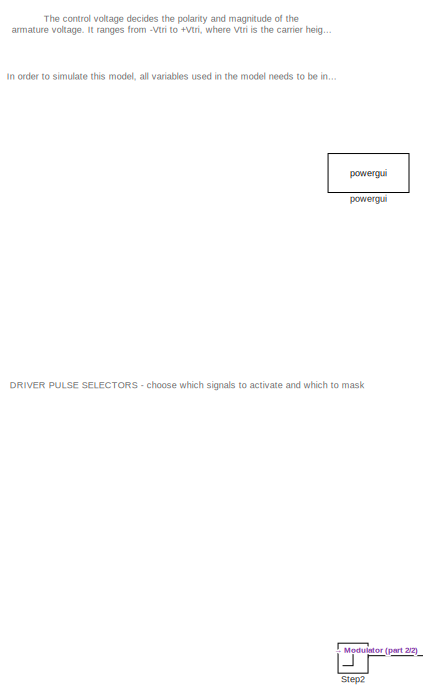
[diagram: root canvas - part 1/2, left side, full height]
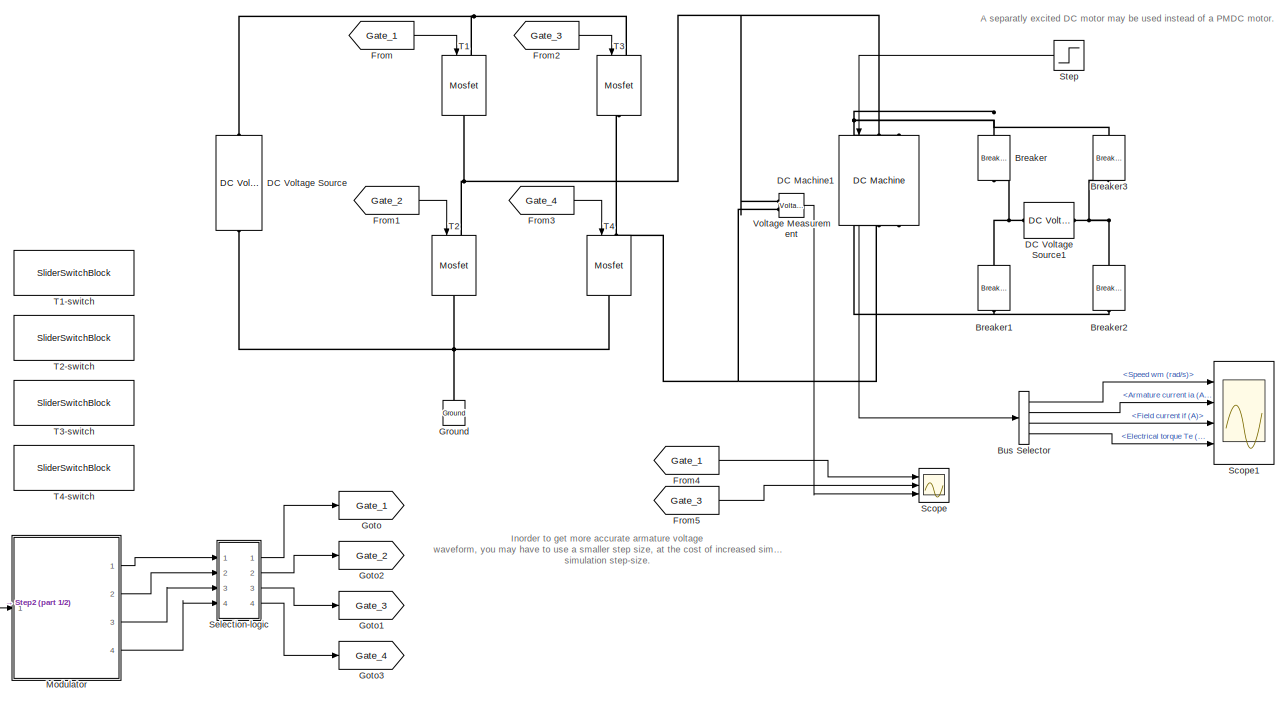
[diagram: root canvas - part 2/2, most of the canvas]
MODEL slx_776ec3e43fee
KIND model
CONFIG AbsTol = auto
CONFIG EnableMultiTasking = on
CONFIG FixedStep = 1e-5
CONFIG MaxStep = 1e-6
CONFIG MinStep = auto
CONFIG RelTol = 1e-3
CONFIG SampleTimeConstraint = Unconstrained
CONFIG SolverName = VariableStepAuto
CONFIG StartTime = 0.0
CONFIG StopTime = 1
BLOCK [Reference] Breaker  REF=spsBreakerLib/Breaker
  NameLocation = left
  Ports = [0, 0, 0, 0, 0, 1, 1]
  SourceBlock = spsBreakerLib/Breaker
  SourceProductBaseCode = PS
  SourceType = Breaker
BLOCK [Reference] Breaker1  REF=spsBreakerLib/Breaker
  NameLocation = left
  Ports = [0, 0, 0, 0, 0, 1, 1]
  SourceBlock = spsBreakerLib/Breaker
  SourceProductBaseCode = PS
  SourceType = Breaker
BLOCK [Reference] Breaker2  REF=spsBreakerLib/Breaker
  NameLocation = left
  Ports = [0, 0, 0, 0, 0, 1, 1]
  SourceBlock = spsBreakerLib/Breaker
  SourceProductBaseCode = PS
  SourceType = Breaker
BLOCK [Reference] Breaker3  REF=spsBreakerLib/Breaker
  NameLocation = left
  Ports = [0, 0, 0, 0, 0, 1, 1]
  SourceBlock = spsBreakerLib/Breaker
  SourceProductBaseCode = PS
  SourceType = Breaker
BLOCK [BusSelector] Bus Selector
  OutputSignals = Speed wm (rad/s),Armature current ia (A),Field current if (A),Electrical torque Te (n m)
  Ports = [1, 4]
BLOCK [Reference] DC Machine1  REF=spsDCMachineLib/DC Machine
  NameLocation = left
  Ports = [1, 1, 0, 0, 0, 2, 2]
  SourceBlock = spsDCMachineLib/DC Machine
  SourceProductBaseCode = PS
  SourceType = DC machine
BLOCK [Reference] DC Voltage Source  REF=spsDCVoltageSourceLib/DC Voltage Source
  NameLocation = right
  Ports = [0, 0, 0, 0, 0, 1, 1]
  SourceBlock = spsDCVoltageSourceLib/DC Voltage Source
  SourceProductBaseCode = PS
  SourceType = DC Voltage Source
BLOCK [Reference] DC Voltage Source1  REF=spsDCVoltageSourceLib/DC Voltage Source
  NameLocation = left
  Ports = [0, 0, 0, 0, 0, 1, 1]
  SourceBlock = spsDCVoltageSourceLib/DC Voltage Source
  SourceProductBaseCode = PS
  SourceType = DC Voltage Source
BLOCK [From] From
  GotoTag = Gate_1
BLOCK [From] From1
  GotoTag = Gate_2
BLOCK [From] From2
  GotoTag = Gate_3
BLOCK [From] From3
  GotoTag = Gate_4
BLOCK [From] From4
  GotoTag = Gate_1
BLOCK [From] From5
  GotoTag = Gate_3
BLOCK [Goto] Goto
  GotoTag = Gate_1
BLOCK [Goto] Goto1
  GotoTag = Gate_3
BLOCK [Goto] Goto2
  GotoTag = Gate_2
BLOCK [Goto] Goto3
  GotoTag = Gate_4
BLOCK [Reference] Ground  REF=spsGroundLib/Ground
  NameLocation = right
  Ports = [0, 0, 0, 0, 0, 1]
  SourceBlock = spsGroundLib/Ground
  SourceProductBaseCode = PS
  SourceType = Ground
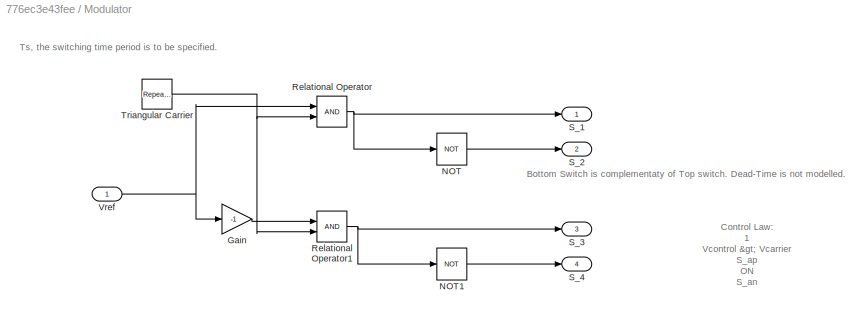
BLOCK [SubSystem] Modulator
  Ports = [1, 4]
  RequestExecContextInheritance = off
BLOCK [Gain] Modulator/Gain
  Gain = -1
  OutDataTypeStr = Inherit: Same as input
  ParamDataTypeStr = Inherit: Same as input
  SaturateOnIntegerOverflow = on
BLOCK [Logic] Modulator/NOT
  AllPortsSameDT = off
  IconShape = distinctive
  Operator = NOT
  OutDataTypeStr = boolean
  Ports = [1, 1]
BLOCK [Logic] Modulator/NOT1
  AllPortsSameDT = off
  IconShape = distinctive
  Operator = NOT
  OutDataTypeStr = boolean
  Ports = [1, 1]
BLOCK [RelationalOperator] Modulator/Relational Operator
  InputSameDT = off
  Ports = [2, 1]
BLOCK [RelationalOperator] Modulator/Relational Operator1
  InputSameDT = off
  Ports = [2, 1]
BLOCK [Outport] Modulator/S_1
BLOCK [Outport] Modulator/S_2
  Port = 2
BLOCK [Outport] Modulator/S_3
  Port = 3
BLOCK [Outport] Modulator/S_4
  Port = 4
BLOCK [Reference] Modulator/Triangular Carrier  REF=simulink/Sources/Repeating
Sequence
  Ports = [0, 1]
  SourceBlock = simulink/Sources/Repeating\nSequence
  SourceProductBaseCode = SL
  SourceType = Repeating table
BLOCK [Inport] Modulator/Vref
BLOCK [Scope] Scope
  Floating = off
  NumInputPorts = 3
  Ports = [3]
  ScopeSpecificationString = Simulink.scopes.TimeScopeBlockCfg('CurrentConfiguration', extmgr.ConfigurationSet(extmgr.Configuration('Core','General UI',true),extmgr.Configuration('Core','Source UI',true),extmgr.Configuration('Sources','WiredSimulink',true),extmgr.Configuration('Visuals','Time Domain',true,'SerializedDisplays',{struct('MinYLimReal','-0.125','MaxYLimReal','1.125','YLabelReal','','MinYLimMag','0.00000','MaxYLimM...<+2739ch>
BLOCK [Scope] Scope1
  Floating = off
  NumInputPorts = 4
  Ports = [4]
  ScopeSpecificationString = Simulink.scopes.TimeScopeBlockCfg('CurrentConfiguration', extmgr.ConfigurationSet(extmgr.Configuration('Core','General UI',true),extmgr.Configuration('Core','Source UI',true),extmgr.Configuration('Sources','WiredSimulink',true,'DataLoggingVariableName','ScopeData1'),extmgr.Configuration('Visuals','Time Domain',true,'SerializedDisplays',{struct('MinYLimReal','-272.42577','MaxYLimReal','232.31235','...<+3692ch>
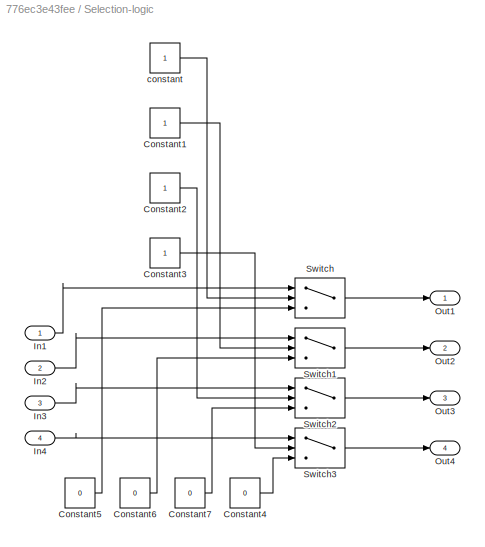
BLOCK [SubSystem] Selection-logic
  Ports = [4, 4]
  RequestExecContextInheritance = off
BLOCK [Constant] Selection-logic/Constant1
BLOCK [Constant] Selection-logic/Constant2
BLOCK [Constant] Selection-logic/Constant3
BLOCK [Constant] Selection-logic/Constant4
  Value = 0
BLOCK [Constant] Selection-logic/Constant5
  Value = 0
BLOCK [Constant] Selection-logic/Constant6
  Value = 0
BLOCK [Constant] Selection-logic/Constant7
  Value = 0
BLOCK [Inport] Selection-logic/In1
BLOCK [Inport] Selection-logic/In2
  Port = 2
BLOCK [Inport] Selection-logic/In3
  Port = 3
BLOCK [Inport] Selection-logic/In4
  Port = 4
BLOCK [Outport] Selection-logic/Out1
BLOCK [Outport] Selection-logic/Out2
  Port = 2
BLOCK [Outport] Selection-logic/Out3
  Port = 3
BLOCK [Outport] Selection-logic/Out4
  Port = 4
BLOCK [Switch] Selection-logic/Switch
  Criteria = u2 > Threshold
  InputSameDT = off
  SaturateOnIntegerOverflow = off
BLOCK [Switch] Selection-logic/Switch1
  Criteria = u2 > Threshold
  InputSameDT = off
  SaturateOnIntegerOverflow = off
BLOCK [Switch] Selection-logic/Switch2
  Criteria = u2 > Threshold
  InputSameDT = off
  SaturateOnIntegerOverflow = off
BLOCK [Switch] Selection-logic/Switch3
  Criteria = u2 > Threshold
  InputSameDT = off
  SaturateOnIntegerOverflow = off
BLOCK [Constant] Selection-logic/constant
BLOCK [Step] Step
  After = -rated_torque
  Before = rated_torque
  SampleTime = 0
  Time = 0.5
BLOCK [Step] Step2
  After = -D1
  Before = D1
  SampleTime = 0
  Time = 0.5
BLOCK [Reference] T1  REF=spsMosfetLib/Mosfet
  NameLocation = left
  Ports = [1, 0, 0, 0, 0, 1, 1]
  SourceBlock = spsMosfetLib/Mosfet
  SourceProductBaseCode = PS
  SourceType = Mosfet
BLOCK [SliderSwitchBlock] T1-switch
BLOCK [Reference] T2  REF=spsMosfetLib/Mosfet
  NameLocation = left
  Ports = [1, 0, 0, 0, 0, 1, 1]
  SourceBlock = spsMosfetLib/Mosfet
  SourceProductBaseCode = PS
  SourceType = Mosfet
BLOCK [SliderSwitchBlock] T2-switch
BLOCK [Reference] T3  REF=spsMosfetLib/Mosfet
  NameLocation = left
  Ports = [1, 0, 0, 0, 0, 1, 1]
  SourceBlock = spsMosfetLib/Mosfet
  SourceProductBaseCode = PS
  SourceType = Mosfet
BLOCK [SliderSwitchBlock] T3-switch
BLOCK [Reference] T4  REF=spsMosfetLib/Mosfet
  NameLocation = left
  Ports = [1, 0, 0, 0, 0, 1, 1]
  SourceBlock = spsMosfetLib/Mosfet
  SourceProductBaseCode = PS
  SourceType = Mosfet
BLOCK [SliderSwitchBlock] T4-switch
BLOCK [Reference] Voltage Measurement  REF=spsVoltageMeasurementLib/Voltage Measurement
  Ports = [0, 1, 0, 0, 0, 2]
  SourceBlock = spsVoltageMeasurementLib/Voltage Measurement
  SourceProductBaseCode = PS
  SourceType = Voltage Measurement
  UserDataPersistent = on
BLOCK [Reference] powergui  REF=spspowerguiLib/powergui
  Ports = []
  Priority = 1
  SourceBlock = spspowerguiLib/powergui
  SourceProductBaseCode = PS
  SourceType = PSB option menu block
ANNOTATION (root): DRIVER PULSE SELECTORS - choose which signals to activate and which to mask
ANNOTATION (root): The control voltage decides the polarity and magnitude of the armature voltage. It ranges from -Vtri to +Vtri, where Vtri is the carrier height set inside the modulator block.
ANNOTATION (root): In order to simulate this model, all variables used in the model needs to be initialised appropriately.
ANNOTATION (root): Inorder to get more accurate armature voltage waveform, you may have to use a smaller step size, at the cost of increased simulation time. Try using 1 us as simulation step-size.
ANNOTATION (root): A separatly excited DC motor may be used instead of a PMDC motor.
ANNOTATION Modulator: Control Law: 1 Vcontrol > Vcarrier S_ap ON S_an OFF 2 -Vcontrol > Vcarrier S_bp ON S_bn OFF
ANNOTATION Modulator: Bottom Switch is complementaty of Top switch. Dead-Time is not modelled.
ANNOTATION Modulator: Ts, the switching time period is to be specified.
LINE Bus Selector:1 -> Scope1:1
LINE Bus Selector:2 -> Scope1:2
LINE Bus Selector:3 -> Scope1:3
LINE Bus Selector:4 -> Scope1:4
LINE DC Machine1:1 -> Bus Selector:1
LINE From1:1 -> T2:1
LINE From2:1 -> T3:1
LINE From3:1 -> T4:1
LINE From4:1 -> Scope:1
LINE From5:1 -> Scope:2
LINE From:1 -> T1:1
LINE Modulator/Gain:1 -> Modulator/Relational Operator1:1
LINE Modulator/NOT1:1 -> Modulator/S_4:1
LINE Modulator/NOT:1 -> Modulator/S_2:1
NET Modulator/Relational Operator1:1 -> Modulator/NOT1:1, Modulator/S_3:1
NET Modulator/Relational Operator:1 -> Modulator/NOT:1, Modulator/S_1:1
NET Modulator/Triangular Carrier:1 -> Modulator/Relational Operator1:2, Modulator/Relational Operator:2
NET Modulator/Vref:1 -> Modulator/Gain:1, Modulator/Relational Operator:1
LINE Modulator:1 -> Selection-logic:1
LINE Modulator:2 -> Selection-logic:2
LINE Modulator:3 -> Selection-logic:3
LINE Modulator:4 -> Selection-logic:4
LINE Selection-logic/Constant1:1 -> Selection-logic/Switch1:2
LINE Selection-logic/Constant2:1 -> Selection-logic/Switch2:2
LINE Selection-logic/Constant3:1 -> Selection-logic/Switch3:2
LINE Selection-logic/Constant4:1 -> Selection-logic/Switch3:3
LINE Selection-logic/Constant5:1 -> Selection-logic/Switch:3
LINE Selection-logic/Constant6:1 -> Selection-logic/Switch1:3
LINE Selection-logic/Constant7:1 -> Selection-logic/Switch2:3
LINE Selection-logic/In1:1 -> Selection-logic/Switch:1
LINE Selection-logic/In2:1 -> Selection-logic/Switch1:1
LINE Selection-logic/In3:1 -> Selection-logic/Switch2:1
LINE Selection-logic/In4:1 -> Selection-logic/Switch3:1
LINE Selection-logic/Switch1:1 -> Selection-logic/Out2:1
LINE Selection-logic/Switch2:1 -> Selection-logic/Out3:1
LINE Selection-logic/Switch3:1 -> Selection-logic/Out4:1
LINE Selection-logic/Switch:1 -> Selection-logic/Out1:1
LINE Selection-logic/constant:1 -> Selection-logic/Switch:2
LINE Selection-logic:1 -> Goto:1
LINE Selection-logic:2 -> Goto2:1
LINE Selection-logic:3 -> Goto1:1
LINE Selection-logic:4 -> Goto3:1
LINE Step2:1 -> Modulator:1
LINE Step:1 -> DC Machine1:1
LINE Voltage Measurement:1 -> Scope:3
PNET net1: Breaker1:LConn1 -- Breaker:RConn1 -- DC Voltage Source1:LConn1
PNET net2: Breaker1:RConn1 -- Breaker2:RConn1 -- DC Machine1:RConn2
PNET net3: Breaker2:LConn1 -- Breaker3:RConn1 -- DC Voltage Source1:RConn1
PNET net4: Breaker3:LConn1 -- Breaker:LConn1 -- DC Machine1:LConn2
PNET net5: DC Machine1:LConn1 -- T1:RConn1 -- T2:LConn1 -- Voltage Measurement:LConn1
PNET net6: DC Machine1:RConn1 -- T3:RConn1 -- T4:LConn1 -- Voltage Measurement:LConn2
PNET net7: DC Voltage Source:LConn1 -- Ground:LConn1 -- T2:RConn1 -- T4:RConn1
PNET net8: DC Voltage Source:RConn1 -- T1:LConn1 -- T3:LConn1
note: NET lines group one-source signal fan-out (src -> all destinations, sorted); 1:1 wires keep LINE; PNET lines group multi-terminal physical nets as a canonical sorted terminal list (undirected conserving connections); 2-terminal nets keep the pairwise PLINE form
